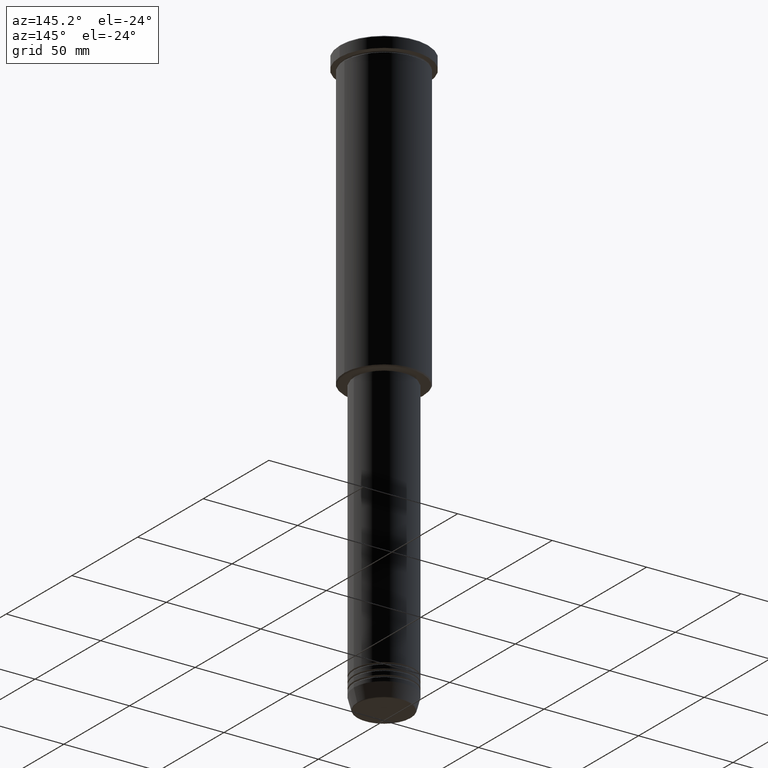
[diagram: clean part render]
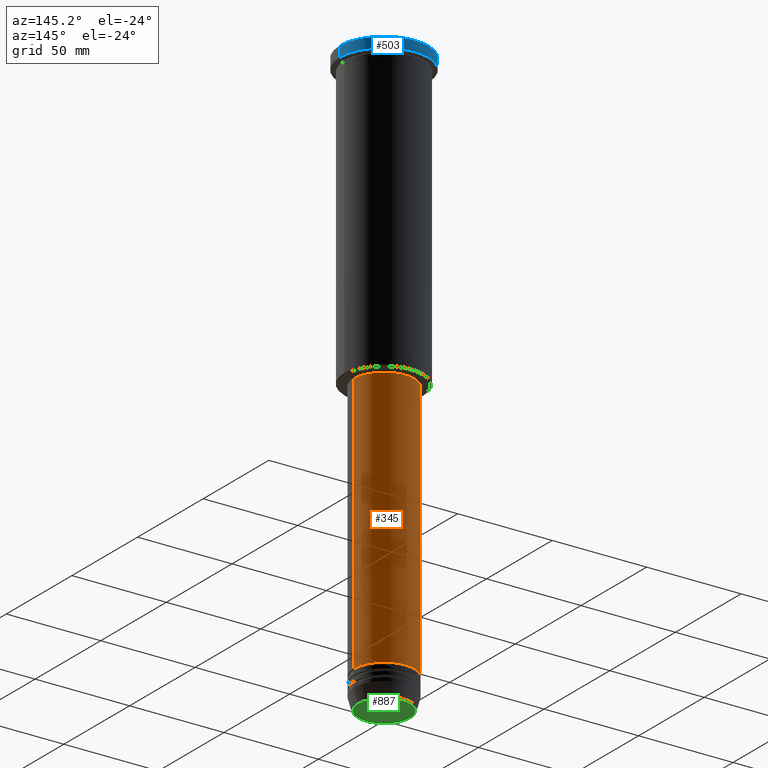
[diagram: same view with three faces highlighted in distinct colors, each labeled with its STEP entity id]
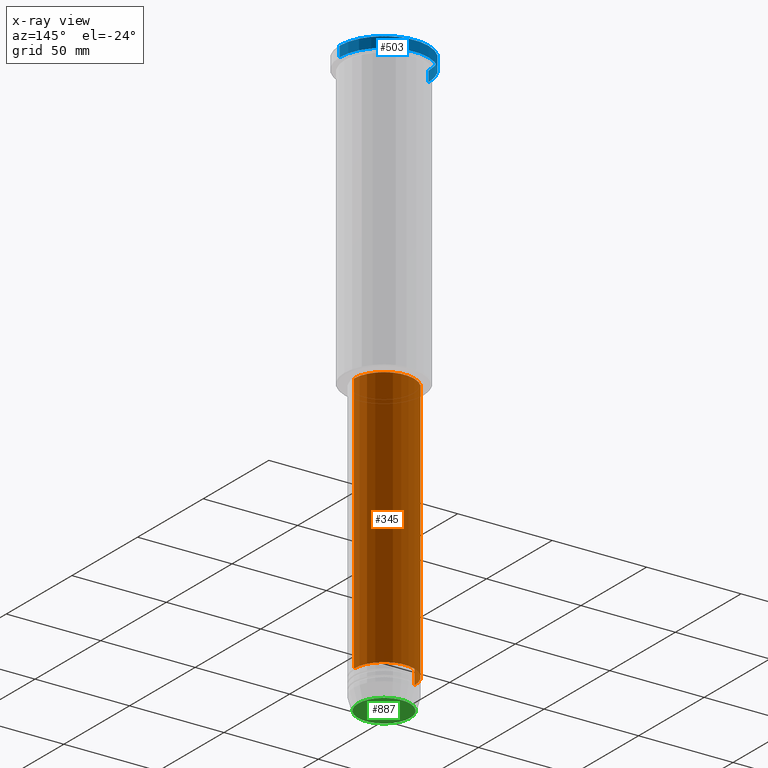
[diagram: x-ray of the same camera — body ghosted, the three highlighted faces saturated]
A machine part, auxiliary view with three faces highlighted in distinct colors.
The next image is the same camera in x-ray (body ghosted, the three faces saturated) — at least one of them is partly hidden behind the body in this view.
Their STEP definitions:

[orange] entity #345 — the highlighted cylindrical surface (partial cylindrical patch) has radius 16 mm, axis along (-0, -0, 1).
#27 = CARTESIAN_POINT ( 'NONE',  ( 16.00000000000000000, 0.000000000000000000, 0.000000000000000000 ) ) ;
#61 = CARTESIAN_POINT ( 'NONE',  ( 0.000000000000000000, 0.000000000000000000, -156.9999999999999147 ) ) ;
#78 = EDGE_CURVE ( 'NONE', #979, #1043, #1065, .T. ) ;
#101 = CARTESIAN_POINT ( 'NONE',  ( 0.000000000000000000, 0.000000000000000000, 0.000000000000000000 ) ) ;
#118 = CARTESIAN_POINT ( 'NONE',  ( 0.000000000000000000, 0.000000000000000000, -295.0000000000000000 ) ) ;
#155 = CARTESIAN_POINT ( 'NONE',  ( -16.00000000000000000, 1.959434878635765131E-15, -295.0000000000000000 ) ) ;
#178 = EDGE_CURVE ( 'NONE', #1043, #1174, #720, .T. ) ;
#181 = CARTESIAN_POINT ( 'NONE',  ( -16.00000000000000000, 1.959434878635765131E-15, -156.9999999999999147 ) ) ;
#186 = VERTEX_POINT ( 'NONE', #401 ) ;
#190 = ORIENTED_EDGE ( 'NONE', *, *, #78, .T. ) ;
#206 = DIRECTION ( 'NONE',  ( -0.000000000000000000, -0.000000000000000000, 1.000000000000000000 ) ) ;
#242 = EDGE_LOOP ( 'NONE', ( #190, #921, #323, #693 ) ) ;
#260 = DIRECTION ( 'NONE',  ( -0.000000000000000000, -0.000000000000000000, 1.000000000000000000 ) ) ;
#313 = CARTESIAN_POINT ( 'NONE',  ( 16.00000000000000000, 0.000000000000000000, -295.0000000000000000 ) ) ;
#323 = ORIENTED_EDGE ( 'NONE', *, *, #1134, .F. ) ;
#345 = ADVANCED_FACE ( 'NONE', ( #726 ), #599, .T. ) ;
#401 = CARTESIAN_POINT ( 'NONE',  ( 16.00000000000000000, 0.000000000000000000, -156.9999999999999147 ) ) ;
#409 = DIRECTION ( 'NONE',  ( -0.000000000000000000, -0.000000000000000000, 1.000000000000000000 ) ) ;
#415 = CIRCLE ( 'NONE', #484, 16.00000000000000000 ) ;
#417 = DIRECTION ( 'NONE',  ( 1.000000000000000000, 0.000000000000000000, 0.000000000000000000 ) ) ;
#482 = DIRECTION ( 'NONE',  ( -0.000000000000000000, -0.000000000000000000, 1.000000000000000000 ) ) ;
#484 = AXIS2_PLACEMENT_3D ( 'NONE', #61, #798, #417 ) ;
#536 = CARTESIAN_POINT ( 'NONE',  ( -16.00000000000000000, 1.959434878635765131E-15, 0.000000000000000000 ) ) ;
#599 = CYLINDRICAL_SURFACE ( 'NONE', #1162, 16.00000000000000000 ) ;
#603 = VECTOR ( 'NONE', #206, 1000.000000000000000 ) ;
#628 = VECTOR ( 'NONE', #409, 1000.000000000000000 ) ;
#693 = ORIENTED_EDGE ( 'NONE', *, *, #954, .F. ) ;
#720 = LINE ( 'NONE', #536, #603 ) ;
#726 = FACE_OUTER_BOUND ( 'NONE', #242, .T. ) ;
#759 = DIRECTION ( 'NONE',  ( 1.000000000000000000, 0.000000000000000000, 0.000000000000000000 ) ) ;
#797 = DIRECTION ( 'NONE',  ( 1.000000000000000000, 0.000000000000000000, 0.000000000000000000 ) ) ;
#798 = DIRECTION ( 'NONE',  ( -0.000000000000000000, -0.000000000000000000, 1.000000000000000000 ) ) ;
#921 = ORIENTED_EDGE ( 'NONE', *, *, #178, .T. ) ;
#944 = AXIS2_PLACEMENT_3D ( 'NONE', #118, #482, #759 ) ;
#954 = EDGE_CURVE ( 'NONE', #979, #186, #1128, .T. ) ;
#979 = VERTEX_POINT ( 'NONE', #313 ) ;
#1043 = VERTEX_POINT ( 'NONE', #155 ) ;
#1065 = CIRCLE ( 'NONE', #944, 16.00000000000000000 ) ;
#1128 = LINE ( 'NONE', #27, #628 ) ;
#1134 = EDGE_CURVE ( 'NONE', #186, #1174, #415, .T. ) ;
#1162 = AXIS2_PLACEMENT_3D ( 'NONE', #101, #260, #797 ) ;
#1174 = VERTEX_POINT ( 'NONE', #181 ) ;

[blue] entity #503 — the highlighted cylindrical surface (partial cylindrical patch) has radius 23.5 mm, axis along (-0, -0, 1).
#47 = VERTEX_POINT ( 'NONE', #1016 ) ;
#52 = EDGE_CURVE ( 'NONE', #47, #704, #889, .T. ) ;
#104 = VERTEX_POINT ( 'NONE', #240 ) ;
#109 = EDGE_CURVE ( 'NONE', #104, #399, #460, .T. ) ;
#224 = EDGE_CURVE ( 'NONE', #399, #47, #299, .T. ) ;
#237 = DIRECTION ( 'NONE',  ( -0.000000000000000000, -0.000000000000000000, 1.000000000000000000 ) ) ;
#240 = CARTESIAN_POINT ( 'NONE',  ( 23.50000000000000000, 0.000000000000000000, -5.999999999999994671 ) ) ;
#247 = CARTESIAN_POINT ( 'NONE',  ( 23.50000000000000000, 0.000000000000000000, -0.4999999999999726885 ) ) ;
#251 = CARTESIAN_POINT ( 'NONE',  ( 23.50000000000000000, 0.000000000000000000, 0.000000000000000000 ) ) ;
#262 = ORIENTED_EDGE ( 'NONE', *, *, #638, .F. ) ;
#264 = CARTESIAN_POINT ( 'NONE',  ( -23.50000000000000000, 2.877919977996280320E-15, -5.999999999999994671 ) ) ;
#270 = DIRECTION ( 'NONE',  ( 1.000000000000000000, 0.000000000000000000, 0.000000000000000000 ) ) ;
#271 = DIRECTION ( 'NONE',  ( -0.000000000000000000, -0.000000000000000000, 1.000000000000000000 ) ) ;
#285 = ORIENTED_EDGE ( 'NONE', *, *, #224, .T. ) ;
#299 = LINE ( 'NONE', #647, #1122 ) ;
#364 = DIRECTION ( 'NONE',  ( 0.000000000000000000, 0.000000000000000000, -1.000000000000000000 ) ) ;
#399 = VERTEX_POINT ( 'NONE', #264 ) ;
#421 = CARTESIAN_POINT ( 'NONE',  ( 0.000000000000000000, 0.000000000000000000, -5.999999999999994671 ) ) ;
#430 = DIRECTION ( 'NONE',  ( 1.000000000000000000, 0.000000000000000000, 0.000000000000000000 ) ) ;
#436 = DIRECTION ( 'NONE',  ( -0.000000000000000000, -0.000000000000000000, 1.000000000000000000 ) ) ;
#460 = CIRCLE ( 'NONE', #1084, 23.50000000000000000 ) ;
#503 = ADVANCED_FACE ( 'NONE', ( #750 ), #551, .T. ) ;
#551 = CYLINDRICAL_SURFACE ( 'NONE', #1177, 23.50000000000000000 ) ;
#565 = DIRECTION ( 'NONE',  ( 1.000000000000000000, 0.000000000000000000, 0.000000000000000000 ) ) ;
#596 = EDGE_LOOP ( 'NONE', ( #1152, #285, #801, #262 ) ) ;
#623 = CARTESIAN_POINT ( 'NONE',  ( 0.000000000000000000, 0.000000000000000000, -0.4999999999999726885 ) ) ;
#638 = EDGE_CURVE ( 'NONE', #104, #704, #680, .T. ) ;
#647 = CARTESIAN_POINT ( 'NONE',  ( -23.50000000000000000, 2.877919977996280320E-15, 0.000000000000000000 ) ) ;
#680 = LINE ( 'NONE', #251, #1108 ) ;
#684 = AXIS2_PLACEMENT_3D ( 'NONE', #623, #364, #270 ) ;
#704 = VERTEX_POINT ( 'NONE', #247 ) ;
#750 = FACE_OUTER_BOUND ( 'NONE', #596, .T. ) ;
#801 = ORIENTED_EDGE ( 'NONE', *, *, #52, .T. ) ;
#889 = CIRCLE ( 'NONE', #684, 23.50000000000000000 ) ;
#1016 = CARTESIAN_POINT ( 'NONE',  ( -23.50000000000000000, 2.877919977996280320E-15, -0.4999999999999726885 ) ) ;
#1023 = DIRECTION ( 'NONE',  ( -0.000000000000000000, -0.000000000000000000, 1.000000000000000000 ) ) ;
#1084 = AXIS2_PLACEMENT_3D ( 'NONE', #421, #271, #430 ) ;
#1108 = VECTOR ( 'NONE', #436, 1000.000000000000000 ) ;
#1110 = CARTESIAN_POINT ( 'NONE',  ( 0.000000000000000000, 0.000000000000000000, 0.000000000000000000 ) ) ;
#1122 = VECTOR ( 'NONE', #237, 1000.000000000000000 ) ;
#1152 = ORIENTED_EDGE ( 'NONE', *, *, #109, .T. ) ;
#1177 = AXIS2_PLACEMENT_3D ( 'NONE', #1110, #1023, #565 ) ;

[green] entity #887 — the highlighted planar face has unit normal (0, -0, 1).
#35 = AXIS2_PLACEMENT_3D ( 'NONE', #630, #542, #734 ) ;
#38 = ORIENTED_EDGE ( 'NONE', *, *, #63, .T. ) ;
#63 = EDGE_CURVE ( 'NONE', #379, #933, #587, .T. ) ;
#71 = EDGE_CURVE ( 'NONE', #933, #379, #965, .T. ) ;
#79 = AXIS2_PLACEMENT_3D ( 'NONE', #583, #1039, #845 ) ;
#112 = CARTESIAN_POINT ( 'NONE',  ( 0.000000000000000000, 0.000000000000000000, -311.0000000000000000 ) ) ;
#284 = AXIS2_PLACEMENT_3D ( 'NONE', #112, #463, #840 ) ;
#379 = VERTEX_POINT ( 'NONE', #1167 ) ;
#463 = DIRECTION ( 'NONE',  ( 0.000000000000000000, 0.000000000000000000, -1.000000000000000000 ) ) ;
#542 = DIRECTION ( 'NONE',  ( 0.000000000000000000, 0.000000000000000000, -1.000000000000000000 ) ) ;
#564 = CARTESIAN_POINT ( 'NONE',  ( -13.74069215899265828, 1.712322416342415986E-15, -311.0000000000000000 ) ) ;
#583 = CARTESIAN_POINT ( 'NONE',  ( 0.000000000000000000, 0.000000000000000000, -311.0000000000000000 ) ) ;
#587 = CIRCLE ( 'NONE', #35, 13.74069215899265828 ) ;
#630 = CARTESIAN_POINT ( 'NONE',  ( 0.000000000000000000, 0.000000000000000000, -311.0000000000000000 ) ) ;
#650 = PLANE ( 'NONE',  #79 ) ;
#734 = DIRECTION ( 'NONE',  ( 1.000000000000000000, 0.000000000000000000, 0.000000000000000000 ) ) ;
#741 = EDGE_LOOP ( 'NONE', ( #38, #1117 ) ) ;
#840 = DIRECTION ( 'NONE',  ( 1.000000000000000000, 0.000000000000000000, 0.000000000000000000 ) ) ;
#845 = DIRECTION ( 'NONE',  ( 1.000000000000000000, 0.000000000000000000, 0.000000000000000000 ) ) ;
#887 = ADVANCED_FACE ( 'NONE', ( #1014 ), #650, .F. ) ;
#933 = VERTEX_POINT ( 'NONE', #564 ) ;
#965 = CIRCLE ( 'NONE', #284, 13.74069215899265828 ) ;
#1014 = FACE_OUTER_BOUND ( 'NONE', #741, .T. ) ;
#1039 = DIRECTION ( 'NONE',  ( 0.000000000000000000, -0.000000000000000000, 1.000000000000000000 ) ) ;
#1117 = ORIENTED_EDGE ( 'NONE', *, *, #71, .T. ) ;
#1167 = CARTESIAN_POINT ( 'NONE',  ( 13.74069215899265828, 0.000000000000000000, -311.0000000000000000 ) ) ;